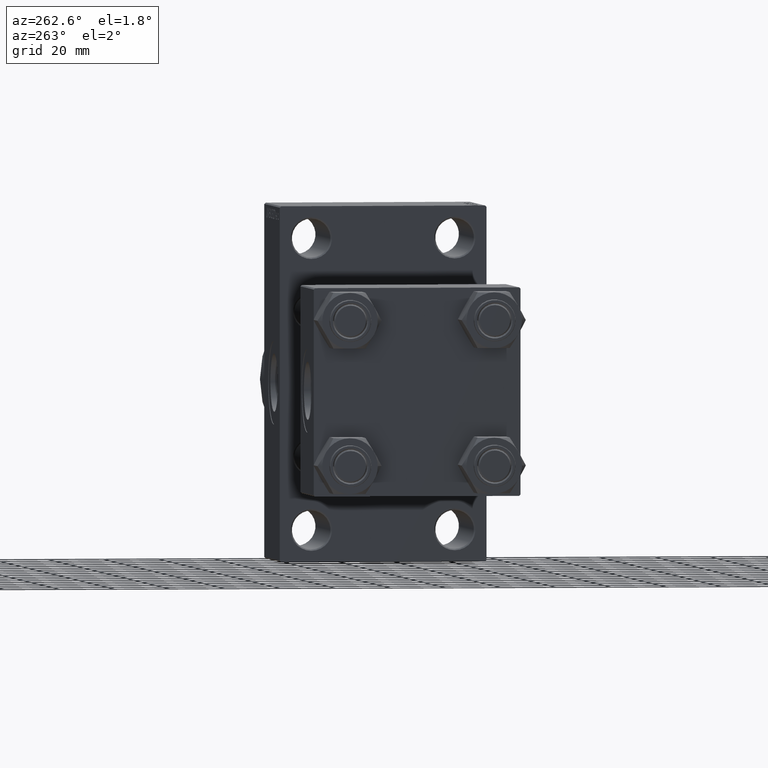
[diagram: clean part render]
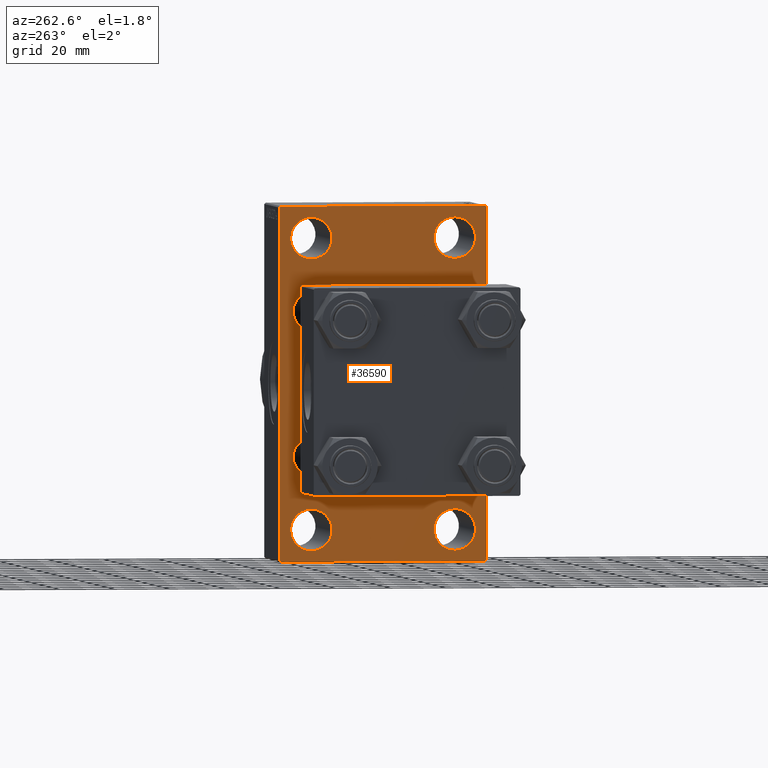
[diagram: same view with one face highlighted and labeled with its STEP entity id]
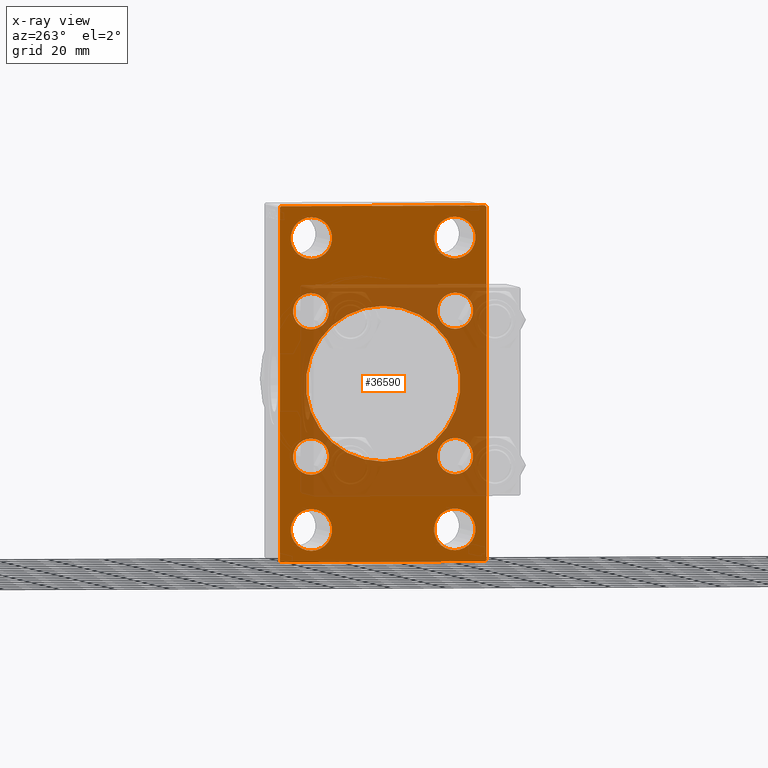
[diagram: x-ray of the same camera — body ghosted, the highlighted face saturated]
A machine part, auxiliary view. The second image highlights one B-rep face of the part: STEP entity #36590.
The next image is the same camera in x-ray: the body ghosted, the highlighted face saturated — about 37% of this face is hidden behind the body in this view.
In plain terms, the highlighted planar face has unit normal (-1, 0, 0).
Its self-contained STEP definition (entity closure, byte-faithful):
#65 = CARTESIAN_POINT ( 'NONE',  ( 95.00000000000000000, -26.14999999999999147, 32.65000000000001990 ) ) ;
#553 = DIRECTION ( 'NONE',  ( 1.000000000000000000, -0.000000000000000000, 0.000000000000000000 ) ) ;
#603 = AXIS2_PLACEMENT_3D ( 'NONE', #36307, #21854, #11004 ) ;
#755 = DIRECTION ( 'NONE',  ( 1.000000000000000000, -0.000000000000000000, 0.000000000000000000 ) ) ;
#849 = ORIENTED_EDGE ( 'NONE', *, *, #30206, .T. ) ;
#949 = AXIS2_PLACEMENT_3D ( 'NONE', #45319, #27705, #42424 ) ;
#1373 = FACE_BOUND ( 'NONE', #7656, .T. ) ;
#1650 = ORIENTED_EDGE ( 'NONE', *, *, #41359, .F. ) ;
#1700 = DIRECTION ( 'NONE',  ( 1.000000000000000000, 0.000000000000000000, 0.000000000000000000 ) ) ;
#1746 = CIRCLE ( 'NONE', #42597, 7.499999999999978684 ) ;
#1756 = VERTEX_POINT ( 'NONE', #27080 ) ;
#1799 = AXIS2_PLACEMENT_3D ( 'NONE', #42633, #27657, #42376 ) ;
#1937 = DIRECTION ( 'NONE',  ( 0.000000000000000000, 0.000000000000000000, -1.000000000000000000 ) ) ;
#1953 = DIRECTION ( 'NONE',  ( 0.000000000000000000, 0.000000000000000000, 1.000000000000000000 ) ) ;
#2033 = EDGE_LOOP ( 'NONE', ( #31758, #2209 ) ) ;
#2088 = DIRECTION ( 'NONE',  ( -0.000000000000000000, 0.000000000000000000, 1.000000000000000000 ) ) ;
#2209 = ORIENTED_EDGE ( 'NONE', *, *, #46909, .T. ) ;
#2773 = DIRECTION ( 'NONE',  ( 0.000000000000000000, 0.000000000000000000, 1.000000000000000000 ) ) ;
#2778 = DIRECTION ( 'NONE',  ( 0.000000000000000000, 0.000000000000000000, 1.000000000000000000 ) ) ;
#3368 = VERTEX_POINT ( 'NONE', #37299 ) ;
#3581 = LINE ( 'NONE', #11546, #10054 ) ;
#3625 = AXIS2_PLACEMENT_3D ( 'NONE', #18353, #47046, #47285 ) ;
#3781 = CARTESIAN_POINT ( 'NONE',  ( 95.00000000000000000, -26.14999999999999147, 26.15000000000000924 ) ) ;
#3916 = CIRCLE ( 'NONE', #33180, 6.500000000000008882 ) ;
#3940 = AXIS2_PLACEMENT_3D ( 'NONE', #16793, #46440, #2778 ) ;
#3988 = VERTEX_POINT ( 'NONE', #14321 ) ;
#4171 = VERTEX_POINT ( 'NONE', #42460 ) ;
#4748 = FACE_BOUND ( 'NONE', #5468, .T. ) ;
#4806 = DIRECTION ( 'NONE',  ( 0.000000000000000000, -1.000000000000000000, -1.850371707708594563E-16 ) ) ;
#5100 = LINE ( 'NONE', #11645, #23638 ) ;
#5468 = EDGE_LOOP ( 'NONE', ( #31913, #41214 ) ) ;
#5506 = DIRECTION ( 'NONE',  ( 1.000000000000000000, -0.000000000000000000, 0.000000000000000000 ) ) ;
#5514 = AXIS2_PLACEMENT_3D ( 'NONE', #38607, #8723, #1953 ) ;
#6347 = CIRCLE ( 'NONE', #7856, 6.500000000000008882 ) ;
#6360 = CARTESIAN_POINT ( 'NONE',  ( 95.00000000000000000, -26.14999999999999147, -32.65000000000001990 ) ) ;
#6766 = VERTEX_POINT ( 'NONE', #10557 ) ;
#6866 = AXIS2_PLACEMENT_3D ( 'NONE', #24416, #36199, #27781 ) ;
#7333 = EDGE_CURVE ( 'NONE', #1756, #11734, #6347, .T. ) ;
#7656 = EDGE_LOOP ( 'NONE', ( #31790, #849 ) ) ;
#7777 = EDGE_LOOP ( 'NONE', ( #7836, #14241, #19972, #27491, #1650, #21620, #17660, #14639 ) ) ;
#7836 = ORIENTED_EDGE ( 'NONE', *, *, #16425, .T. ) ;
#7856 = AXIS2_PLACEMENT_3D ( 'NONE', #46620, #13609, #34032 ) ;
#8259 = DIRECTION ( 'NONE',  ( -0.000000000000000000, 0.7071067811865524577, 0.7071067811865426878 ) ) ;
#8376 = FACE_BOUND ( 'NONE', #46475, .T. ) ;
#8409 = CARTESIAN_POINT ( 'NONE',  ( 95.00000000000000000, -26.14999999999999147, 19.65000000000000213 ) ) ;
#8475 = CARTESIAN_POINT ( 'NONE',  ( 95.00000000000000000, -26.14999999999999147, -19.65000000000000213 ) ) ;
#8723 = DIRECTION ( 'NONE',  ( 1.000000000000000000, -0.000000000000000000, 0.000000000000000000 ) ) ;
#8852 = VERTEX_POINT ( 'NONE', #33463 ) ;
#9118 = CARTESIAN_POINT ( 'NONE',  ( 95.00000000000000000, 26.00000000000000000, -52.49999999999999289 ) ) ;
#9478 = CIRCLE ( 'NONE', #37296, 7.499999999999978684 ) ;
#9702 = AXIS2_PLACEMENT_3D ( 'NONE', #3781, #11289, #44540 ) ;
#9797 = EDGE_CURVE ( 'NONE', #37078, #44811, #43398, .T. ) ;
#10054 = VECTOR ( 'NONE', #18552, 999.9999999999998863 ) ;
#10144 = DIRECTION ( 'NONE',  ( 1.000000000000000000, -0.000000000000000000, 0.000000000000000000 ) ) ;
#10557 = CARTESIAN_POINT ( 'NONE',  ( 95.00000000000000000, -37.49999999999999289, -63.49999999999997158 ) ) ;
#10854 = CARTESIAN_POINT ( 'NONE',  ( 95.00000000000000000, 26.00000000000000000, -45.00000000000001421 ) ) ;
#11004 = DIRECTION ( 'NONE',  ( 0.000000000000000000, 0.000000000000000000, 1.000000000000000000 ) ) ;
#11136 = EDGE_LOOP ( 'NONE', ( #20196, #28170 ) ) ;
#11174 = LINE ( 'NONE', #41709, #21347 ) ;
#11289 = DIRECTION ( 'NONE',  ( 1.000000000000000000, -0.000000000000000000, 0.000000000000000000 ) ) ;
#11546 = CARTESIAN_POINT ( 'NONE',  ( 95.00000000000000000, -50.49999999999945999, -50.50000000000086686 ) ) ;
#11645 = CARTESIAN_POINT ( 'NONE',  ( 95.00000000000000000, 37.50000000000000000, 63.99999999999998579 ) ) ;
#11734 = VERTEX_POINT ( 'NONE', #14542 ) ;
#12019 = FACE_BOUND ( 'NONE', #17784, .T. ) ;
#12126 = CIRCLE ( 'NONE', #3625, 6.500000000000008882 ) ;
#12197 = CARTESIAN_POINT ( 'NONE',  ( 95.00000000000000000, -37.49999999999999289, 63.99999999999997158 ) ) ;
#12246 = FACE_BOUND ( 'NONE', #37118, .T. ) ;
#12489 = CIRCLE ( 'NONE', #949, 7.499999999999978684 ) ;
#12683 = ORIENTED_EDGE ( 'NONE', *, *, #9797, .T. ) ;
#12818 = CARTESIAN_POINT ( 'NONE',  ( 95.00000000000000000, -2.602085213965210642E-15, 0.000000000000000000 ) ) ;
#13427 = LINE ( 'NONE', #42329, #37049 ) ;
#13609 = DIRECTION ( 'NONE',  ( 1.000000000000000000, -0.000000000000000000, 0.000000000000000000 ) ) ;
#13867 = VERTEX_POINT ( 'NONE', #15038 ) ;
#14238 = EDGE_CURVE ( 'NONE', #16467, #30615, #15888, .T. ) ;
#14241 = ORIENTED_EDGE ( 'NONE', *, *, #41180, .T. ) ;
#14321 = CARTESIAN_POINT ( 'NONE',  ( 95.00000000000000000, -25.99999999999999645, -45.00000000000001421 ) ) ;
#14542 = CARTESIAN_POINT ( 'NONE',  ( 95.00000000000000000, 26.14999999999999858, -32.65000000000001279 ) ) ;
#14639 = ORIENTED_EDGE ( 'NONE', *, *, #41347, .T. ) ;
#14672 = AXIS2_PLACEMENT_3D ( 'NONE', #43421, #10144, #36157 ) ;
#14882 = EDGE_CURVE ( 'NONE', #34461, #32802, #32786, .T. ) ;
#15038 = CARTESIAN_POINT ( 'NONE',  ( 95.00000000000000000, 8.269258236473776482E-16, -28.00000000000000000 ) ) ;
#15251 = CARTESIAN_POINT ( 'NONE',  ( 95.00000000000000000, -26.14999999999999147, 26.15000000000000924 ) ) ;
#15677 = VERTEX_POINT ( 'NONE', #37846 ) ;
#15888 = CIRCLE ( 'NONE', #9702, 6.500000000000008882 ) ;
#16106 = FACE_OUTER_BOUND ( 'NONE', #7777, .T. ) ;
#16425 = EDGE_CURVE ( 'NONE', #15677, #28736, #11174, .T. ) ;
#16467 = VERTEX_POINT ( 'NONE', #65 ) ;
#16781 = CARTESIAN_POINT ( 'NONE',  ( 95.00000000000000000, -25.99999999999999645, 52.50000000000000000 ) ) ;
#16793 = CARTESIAN_POINT ( 'NONE',  ( 95.00000000000000000, 26.14999999999999858, 26.15000000000000213 ) ) ;
#17029 = DIRECTION ( 'NONE',  ( 0.000000000000000000, 0.7071067811865672237, -0.7071067811865279218 ) ) ;
#17060 = DIRECTION ( 'NONE',  ( -1.000000000000000000, 0.000000000000000000, -0.000000000000000000 ) ) ;
#17342 = EDGE_CURVE ( 'NONE', #38561, #45433, #5100, .T. ) ;
#17509 = EDGE_CURVE ( 'NONE', #44811, #37078, #12126, .T. ) ;
#17660 = ORIENTED_EDGE ( 'NONE', *, *, #17342, .T. ) ;
#17751 = DIRECTION ( 'NONE',  ( 0.000000000000000000, 0.000000000000000000, 1.000000000000000000 ) ) ;
#17775 = VECTOR ( 'NONE', #19976, 1000.000000000000000 ) ;
#17784 = EDGE_LOOP ( 'NONE', ( #34906, #46527 ) ) ;
#18107 = CARTESIAN_POINT ( 'NONE',  ( 95.00000000000000000, -36.99999999999993605, -64.00000000000001421 ) ) ;
#18353 = CARTESIAN_POINT ( 'NONE',  ( 95.00000000000000000, -26.14999999999999147, -26.15000000000000924 ) ) ;
#18552 = DIRECTION ( 'NONE',  ( 0.000000000000000000, -0.7071067811865574537, 0.7071067811865376918 ) ) ;
#19082 = EDGE_CURVE ( 'NONE', #3988, #29238, #32163, .T. ) ;
#19141 = VECTOR ( 'NONE', #8259, 1000.000000000000000 ) ;
#19383 = DIRECTION ( 'NONE',  ( 0.000000000000000000, 0.000000000000000000, 1.000000000000000000 ) ) ;
#19664 = EDGE_CURVE ( 'NONE', #38276, #40056, #33578, .T. ) ;
#19956 = CARTESIAN_POINT ( 'NONE',  ( 95.00000000000000000, 0.000000000000000000, 0.000000000000000000 ) ) ;
#19972 = ORIENTED_EDGE ( 'NONE', *, *, #26134, .F. ) ;
#19976 = DIRECTION ( 'NONE',  ( 0.000000000000000000, -1.000000000000000000, -1.850371707708594563E-16 ) ) ;
#20196 = ORIENTED_EDGE ( 'NONE', *, *, #38237, .T. ) ;
#20330 = CARTESIAN_POINT ( 'NONE',  ( 95.00000000000000000, -37.49999999999999289, 63.49999999999994316 ) ) ;
#20448 = ORIENTED_EDGE ( 'NONE', *, *, #45422, .T. ) ;
#21347 = VECTOR ( 'NONE', #4806, 1000.000000000000000 ) ;
#21417 = VERTEX_POINT ( 'NONE', #23218 ) ;
#21620 = ORIENTED_EDGE ( 'NONE', *, *, #30135, .T. ) ;
#21854 = DIRECTION ( 'NONE',  ( 1.000000000000000000, -0.000000000000000000, 0.000000000000000000 ) ) ;
#21858 = CARTESIAN_POINT ( 'NONE',  ( 95.00000000000000000, 26.00000000000000000, -59.99999999999997158 ) ) ;
#22285 = CARTESIAN_POINT ( 'NONE',  ( 95.00000000000000000, 37.49999999999999289, -63.50000000000001421 ) ) ;
#22404 = EDGE_CURVE ( 'NONE', #32802, #34461, #33014, .T. ) ;
#22881 = CARTESIAN_POINT ( 'NONE',  ( 95.00000000000000000, 50.49999999999948841, -50.50000000000088107 ) ) ;
#23119 = CIRCLE ( 'NONE', #14672, 6.500000000000008882 ) ;
#23126 = AXIS2_PLACEMENT_3D ( 'NONE', #36020, #47589, #43273 ) ;
#23218 = CARTESIAN_POINT ( 'NONE',  ( 95.00000000000000000, 26.00000000000000000, 59.99999999999997158 ) ) ;
#23230 = CARTESIAN_POINT ( 'NONE',  ( 95.00000000000000000, -25.99999999999999645, -59.99999999999997158 ) ) ;
#23638 = VECTOR ( 'NONE', #44912, 1000.000000000000000 ) ;
#23726 = EDGE_CURVE ( 'NONE', #37872, #21417, #27717, .T. ) ;
#23919 = ORIENTED_EDGE ( 'NONE', *, *, #17509, .T. ) ;
#24390 = CARTESIAN_POINT ( 'NONE',  ( 95.00000000000000000, 26.14999999999999858, 19.64999999999999147 ) ) ;
#24416 = CARTESIAN_POINT ( 'NONE',  ( 95.00000000000000000, 26.00000000000000000, -52.49999999999999289 ) ) ;
#25183 = CARTESIAN_POINT ( 'NONE',  ( 95.00000000000000000, 26.14999999999999858, 32.65000000000001990 ) ) ;
#25523 = CIRCLE ( 'NONE', #5514, 6.500000000000008882 ) ;
#26134 = EDGE_CURVE ( 'NONE', #38276, #6766, #30512, .T. ) ;
#26237 = ORIENTED_EDGE ( 'NONE', *, *, #33664, .T. ) ;
#26496 = DIRECTION ( 'NONE',  ( -0.000000000000000000, -0.7071067811865573427, -0.7071067811865378028 ) ) ;
#26713 = FACE_BOUND ( 'NONE', #2033, .T. ) ;
#27080 = CARTESIAN_POINT ( 'NONE',  ( 95.00000000000000000, 26.14999999999999858, -19.64999999999999503 ) ) ;
#27491 = ORIENTED_EDGE ( 'NONE', *, *, #19664, .T. ) ;
#27657 = DIRECTION ( 'NONE',  ( 1.000000000000000000, -0.000000000000000000, 0.000000000000000000 ) ) ;
#27705 = DIRECTION ( 'NONE',  ( 1.000000000000000000, -0.000000000000000000, 0.000000000000000000 ) ) ;
#27717 = CIRCLE ( 'NONE', #23126, 7.499999999999978684 ) ;
#27781 = DIRECTION ( 'NONE',  ( 0.000000000000000000, 0.000000000000000000, 1.000000000000000000 ) ) ;
#28021 = ORIENTED_EDGE ( 'NONE', *, *, #28579, .T. ) ;
#28170 = ORIENTED_EDGE ( 'NONE', *, *, #23726, .T. ) ;
#28485 = ORIENTED_EDGE ( 'NONE', *, *, #22404, .T. ) ;
#28579 = EDGE_CURVE ( 'NONE', #11734, #1756, #23119, .T. ) ;
#28689 = CIRCLE ( 'NONE', #39469, 28.00000000000000000 ) ;
#28736 = VERTEX_POINT ( 'NONE', #18107 ) ;
#28799 = DIRECTION ( 'NONE',  ( 0.000000000000000000, 0.000000000000000000, -1.000000000000000000 ) ) ;
#29201 = VECTOR ( 'NONE', #28799, 1000.000000000000000 ) ;
#29238 = VERTEX_POINT ( 'NONE', #23230 ) ;
#30036 = DIRECTION ( 'NONE',  ( 0.000000000000000000, 0.000000000000000000, -1.000000000000000000 ) ) ;
#30135 = EDGE_CURVE ( 'NONE', #3368, #38561, #13427, .T. ) ;
#30206 = EDGE_CURVE ( 'NONE', #30615, #16467, #3916, .T. ) ;
#30289 = DIRECTION ( 'NONE',  ( 1.000000000000000000, 0.000000000000000000, 0.000000000000000000 ) ) ;
#30352 = LINE ( 'NONE', #22881, #32380 ) ;
#30512 = LINE ( 'NONE', #12197, #29201 ) ;
#30579 = LINE ( 'NONE', #37578, #17775 ) ;
#30615 = VERTEX_POINT ( 'NONE', #8409 ) ;
#30786 = PLANE ( 'NONE',  #42677 ) ;
#31246 = AXIS2_PLACEMENT_3D ( 'NONE', #9118, #5506, #38799 ) ;
#31394 = EDGE_CURVE ( 'NONE', #40635, #44980, #25523, .T. ) ;
#31758 = ORIENTED_EDGE ( 'NONE', *, *, #19082, .T. ) ;
#31790 = ORIENTED_EDGE ( 'NONE', *, *, #14238, .T. ) ;
#31913 = ORIENTED_EDGE ( 'NONE', *, *, #31394, .T. ) ;
#31954 = DIRECTION ( 'NONE',  ( 0.000000000000000000, 0.000000000000000000, 1.000000000000000000 ) ) ;
#32163 = CIRCLE ( 'NONE', #603, 7.499999999999978684 ) ;
#32164 = EDGE_LOOP ( 'NONE', ( #36082, #28021 ) ) ;
#32322 = EDGE_CURVE ( 'NONE', #4171, #42317, #12489, .T. ) ;
#32380 = VECTOR ( 'NONE', #26496, 1000.000000000000000 ) ;
#32786 = CIRCLE ( 'NONE', #31246, 7.499999999999978684 ) ;
#32802 = VERTEX_POINT ( 'NONE', #21858 ) ;
#33014 = CIRCLE ( 'NONE', #6866, 7.499999999999978684 ) ;
#33180 = AXIS2_PLACEMENT_3D ( 'NONE', #15251, #755, #2773 ) ;
#33414 = CARTESIAN_POINT ( 'NONE',  ( 95.00000000000000000, -2.602085213965210642E-15, 0.000000000000000000 ) ) ;
#33463 = CARTESIAN_POINT ( 'NONE',  ( 95.00000000000000000, -2.602085213965210642E-15, 28.00000000000000000 ) ) ;
#33578 = LINE ( 'NONE', #41302, #19141 ) ;
#33581 = CARTESIAN_POINT ( 'NONE',  ( 95.00000000000000000, 26.00000000000000000, 52.49999999999999289 ) ) ;
#33664 = EDGE_CURVE ( 'NONE', #13867, #8852, #28689, .T. ) ;
#34032 = DIRECTION ( 'NONE',  ( 0.000000000000000000, 0.000000000000000000, 1.000000000000000000 ) ) ;
#34461 = VERTEX_POINT ( 'NONE', #10854 ) ;
#34748 = CIRCLE ( 'NONE', #3940, 6.500000000000008882 ) ;
#34906 = ORIENTED_EDGE ( 'NONE', *, *, #32322, .T. ) ;
#35082 = DIRECTION ( 'NONE',  ( 1.000000000000000000, -0.000000000000000000, 0.000000000000000000 ) ) ;
#36020 = CARTESIAN_POINT ( 'NONE',  ( 95.00000000000000000, 26.00000000000000000, 52.49999999999999289 ) ) ;
#36049 = DIRECTION ( 'NONE',  ( 1.000000000000000000, -0.000000000000000000, 0.000000000000000000 ) ) ;
#36082 = ORIENTED_EDGE ( 'NONE', *, *, #7333, .T. ) ;
#36157 = DIRECTION ( 'NONE',  ( 0.000000000000000000, 0.000000000000000000, 1.000000000000000000 ) ) ;
#36199 = DIRECTION ( 'NONE',  ( 1.000000000000000000, -0.000000000000000000, 0.000000000000000000 ) ) ;
#36307 = CARTESIAN_POINT ( 'NONE',  ( 95.00000000000000000, -25.99999999999999645, -52.49999999999999289 ) ) ;
#36590 = ADVANCED_FACE ( 'NONE', ( #12019, #26713, #8376, #37799, #1373, #4748, #45263, #38269, #12246, #16106 ), #30786, .T. ) ;
#36675 = CARTESIAN_POINT ( 'NONE',  ( 95.00000000000000000, -36.99999999999995737, 63.99999999999997158 ) ) ;
#37026 = AXIS2_PLACEMENT_3D ( 'NONE', #16781, #35082, #31954 ) ;
#37049 = VECTOR ( 'NONE', #17029, 1000.000000000000000 ) ;
#37078 = VERTEX_POINT ( 'NONE', #6360 ) ;
#37118 = EDGE_LOOP ( 'NONE', ( #20448, #26237 ) ) ;
#37296 = AXIS2_PLACEMENT_3D ( 'NONE', #33581, #553, #19383 ) ;
#37299 = CARTESIAN_POINT ( 'NONE',  ( 95.00000000000000000, 36.99999999999997158, 63.99999999999998579 ) ) ;
#37578 = CARTESIAN_POINT ( 'NONE',  ( 95.00000000000000000, 37.50000000000000000, 63.99999999999998579 ) ) ;
#37795 = CIRCLE ( 'NONE', #37026, 7.499999999999978684 ) ;
#37799 = FACE_BOUND ( 'NONE', #11136, .T. ) ;
#37846 = CARTESIAN_POINT ( 'NONE',  ( 95.00000000000000000, 36.99999999999999289, -64.00000000000000000 ) ) ;
#37872 = VERTEX_POINT ( 'NONE', #41127 ) ;
#38108 = CARTESIAN_POINT ( 'NONE',  ( 95.00000000000000000, 37.50000000000000000, 63.49999999999998579 ) ) ;
#38237 = EDGE_CURVE ( 'NONE', #21417, #37872, #9478, .T. ) ;
#38269 = FACE_BOUND ( 'NONE', #46173, .T. ) ;
#38276 = VERTEX_POINT ( 'NONE', #20330 ) ;
#38297 = CARTESIAN_POINT ( 'NONE',  ( 95.00000000000000000, -25.99999999999999645, 45.00000000000002132 ) ) ;
#38561 = VERTEX_POINT ( 'NONE', #38108 ) ;
#38607 = CARTESIAN_POINT ( 'NONE',  ( 95.00000000000000000, 26.14999999999999858, 26.15000000000000213 ) ) ;
#38737 = CARTESIAN_POINT ( 'NONE',  ( 95.00000000000000000, -25.99999999999999645, -52.49999999999999289 ) ) ;
#38799 = DIRECTION ( 'NONE',  ( 0.000000000000000000, 0.000000000000000000, 1.000000000000000000 ) ) ;
#39457 = AXIS2_PLACEMENT_3D ( 'NONE', #12818, #1700, #1937 ) ;
#39469 = AXIS2_PLACEMENT_3D ( 'NONE', #33414, #30289, #30036 ) ;
#39818 = ORIENTED_EDGE ( 'NONE', *, *, #14882, .T. ) ;
#40056 = VERTEX_POINT ( 'NONE', #36675 ) ;
#40635 = VERTEX_POINT ( 'NONE', #25183 ) ;
#41127 = CARTESIAN_POINT ( 'NONE',  ( 95.00000000000000000, 26.00000000000000000, 45.00000000000001421 ) ) ;
#41180 = EDGE_CURVE ( 'NONE', #28736, #6766, #3581, .T. ) ;
#41214 = ORIENTED_EDGE ( 'NONE', *, *, #42745, .T. ) ;
#41302 = CARTESIAN_POINT ( 'NONE',  ( 95.00000000000000000, -50.49999999999970868, 50.50000000000040501 ) ) ;
#41347 = EDGE_CURVE ( 'NONE', #45433, #15677, #30352, .T. ) ;
#41359 = EDGE_CURVE ( 'NONE', #3368, #40056, #30579, .T. ) ;
#41709 = CARTESIAN_POINT ( 'NONE',  ( 95.00000000000000000, 37.49999999999999289, -64.00000000000000000 ) ) ;
#41810 = EDGE_CURVE ( 'NONE', #42317, #4171, #37795, .T. ) ;
#42317 = VERTEX_POINT ( 'NONE', #38297 ) ;
#42329 = CARTESIAN_POINT ( 'NONE',  ( 95.00000000000000000, 50.49999999999894840, 50.50000000000176215 ) ) ;
#42376 = DIRECTION ( 'NONE',  ( 0.000000000000000000, 0.000000000000000000, 1.000000000000000000 ) ) ;
#42424 = DIRECTION ( 'NONE',  ( 0.000000000000000000, 0.000000000000000000, 1.000000000000000000 ) ) ;
#42460 = CARTESIAN_POINT ( 'NONE',  ( 95.00000000000000000, -25.99999999999999645, 59.99999999999997868 ) ) ;
#42597 = AXIS2_PLACEMENT_3D ( 'NONE', #38737, #36049, #17751 ) ;
#42633 = CARTESIAN_POINT ( 'NONE',  ( 95.00000000000000000, -26.14999999999999147, -26.15000000000000924 ) ) ;
#42677 = AXIS2_PLACEMENT_3D ( 'NONE', #19956, #17060, #2088 ) ;
#42745 = EDGE_CURVE ( 'NONE', #44980, #40635, #34748, .T. ) ;
#43273 = DIRECTION ( 'NONE',  ( 0.000000000000000000, 0.000000000000000000, 1.000000000000000000 ) ) ;
#43398 = CIRCLE ( 'NONE', #1799, 6.500000000000008882 ) ;
#43421 = CARTESIAN_POINT ( 'NONE',  ( 95.00000000000000000, 26.14999999999999858, -26.15000000000000213 ) ) ;
#44540 = DIRECTION ( 'NONE',  ( 0.000000000000000000, 0.000000000000000000, 1.000000000000000000 ) ) ;
#44811 = VERTEX_POINT ( 'NONE', #8475 ) ;
#44912 = DIRECTION ( 'NONE',  ( 0.000000000000000000, -5.421010862427522170E-17, -1.000000000000000000 ) ) ;
#44980 = VERTEX_POINT ( 'NONE', #24390 ) ;
#45263 = FACE_BOUND ( 'NONE', #32164, .T. ) ;
#45319 = CARTESIAN_POINT ( 'NONE',  ( 95.00000000000000000, -25.99999999999999645, 52.50000000000000000 ) ) ;
#45422 = EDGE_CURVE ( 'NONE', #8852, #13867, #47163, .T. ) ;
#45433 = VERTEX_POINT ( 'NONE', #22285 ) ;
#46173 = EDGE_LOOP ( 'NONE', ( #23919, #12683 ) ) ;
#46440 = DIRECTION ( 'NONE',  ( 1.000000000000000000, -0.000000000000000000, 0.000000000000000000 ) ) ;
#46475 = EDGE_LOOP ( 'NONE', ( #39818, #28485 ) ) ;
#46527 = ORIENTED_EDGE ( 'NONE', *, *, #41810, .T. ) ;
#46620 = CARTESIAN_POINT ( 'NONE',  ( 95.00000000000000000, 26.14999999999999858, -26.15000000000000213 ) ) ;
#46909 = EDGE_CURVE ( 'NONE', #29238, #3988, #1746, .T. ) ;
#47046 = DIRECTION ( 'NONE',  ( 1.000000000000000000, -0.000000000000000000, 0.000000000000000000 ) ) ;
#47163 = CIRCLE ( 'NONE', #39457, 28.00000000000000000 ) ;
#47285 = DIRECTION ( 'NONE',  ( 0.000000000000000000, 0.000000000000000000, 1.000000000000000000 ) ) ;
#47589 = DIRECTION ( 'NONE',  ( 1.000000000000000000, -0.000000000000000000, 0.000000000000000000 ) ) ;